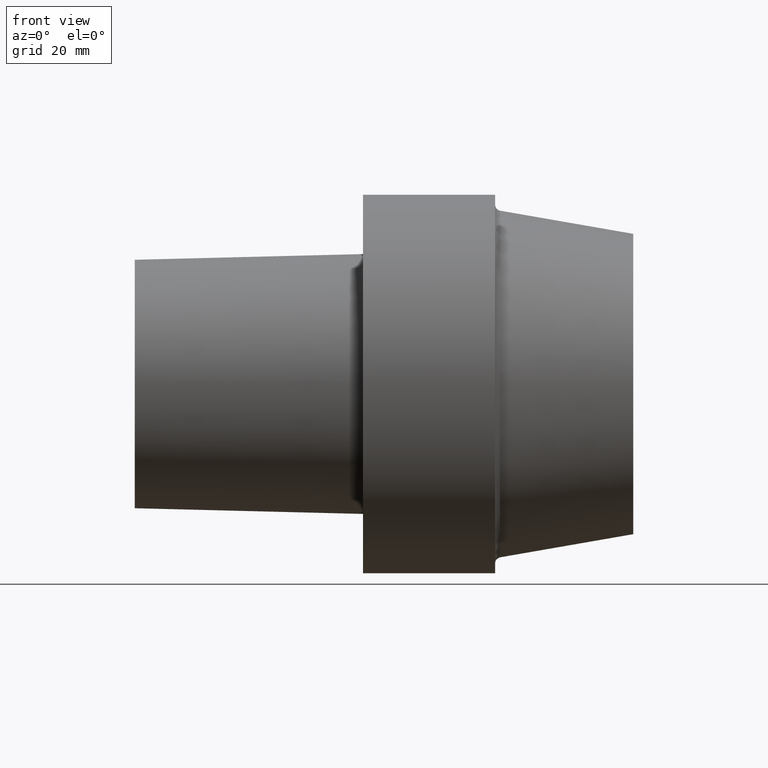
[diagram: clean part render]
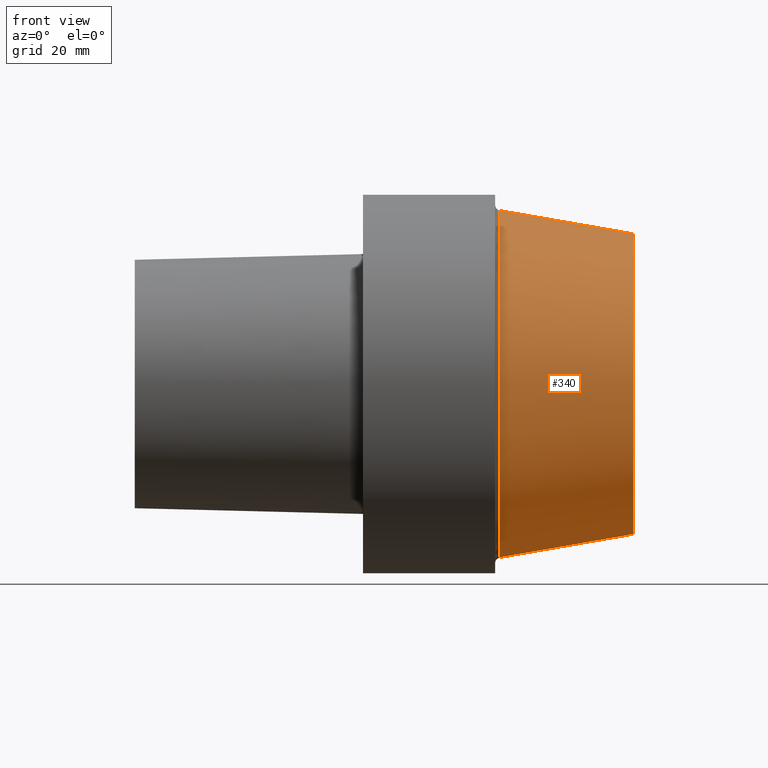
[diagram: same view with one face highlighted and labeled with its STEP entity id]
A machine part, front view. The second image highlights one B-rep face of the part: STEP entity #340.
In plain terms, the highlighted conical surface has half-angle 9.866 deg.
Its self-contained STEP definition (entity closure, byte-faithful):
#19 = DIRECTION ( 'NONE',  ( 0.000000000000000000, 0.000000000000000000, -1.000000000000000000 ) ) ;
#42 = VERTEX_POINT ( 'NONE', #320 ) ;
#64 = ORIENTED_EDGE ( 'NONE', *, *, #299, .T. ) ;
#71 = VERTEX_POINT ( 'NONE', #210 ) ;
#74 = CARTESIAN_POINT ( 'NONE',  ( 44.99999995409999798, 0.000000000000000000, 24.99999997449999967 ) ) ;
#77 = CARTESIAN_POINT ( 'NONE',  ( 44.99999995409999798, 0.000000000000000000, 0.000000000000000000 ) ) ;
#78 = EDGE_CURVE ( 'NONE', #144, #112, #378, .T. ) ;
#87 = CONICAL_SURFACE ( 'NONE', #140, 24.99999997449999967, 0.1721908144848698641 ) ;
#112 = VERTEX_POINT ( 'NONE', #128 ) ;
#128 = CARTESIAN_POINT ( 'NONE',  ( 44.99999995409999798, 3.297721881378803362E-15, -24.99999997449999967 ) ) ;
#140 = AXIS2_PLACEMENT_3D ( 'NONE', #77, #177, #232 ) ;
#144 = VERTEX_POINT ( 'NONE', #251 ) ;
#160 = ORIENTED_EDGE ( 'NONE', *, *, #78, .F. ) ;
#164 = ORIENTED_EDGE ( 'NONE', *, *, #349, .T. ) ;
#167 = AXIS2_PLACEMENT_3D ( 'NONE', #233, #348, #346 ) ;
#169 = FACE_OUTER_BOUND ( 'NONE', #274, .T. ) ;
#177 = DIRECTION ( 'NONE',  ( -1.000000000000000000, 0.000000000000000000, 0.000000000000000000 ) ) ;
#200 = CARTESIAN_POINT ( 'NONE',  ( 22.82865880671476688, 0.000000000000000000, 0.000000000000000000 ) ) ;
#210 = CARTESIAN_POINT ( 'NONE',  ( 22.82865880671476688, 3.533826768012075119E-15, -28.85588539056699631 ) ) ;
#219 = CARTESIAN_POINT ( 'NONE',  ( 44.99999995409999798, 3.061616994745535943E-15, -24.99999997449999967 ) ) ;
#220 = EDGE_CURVE ( 'NONE', #112, #71, #304, .T. ) ;
#232 = DIRECTION ( 'NONE',  ( 0.000000000000000000, 0.000000000000000000, 1.000000000000000000 ) ) ;
#233 = CARTESIAN_POINT ( 'NONE',  ( 44.99999995409999798, 0.000000000000000000, 0.000000000000000000 ) ) ;
#242 = AXIS2_PLACEMENT_3D ( 'NONE', #200, #351, #19 ) ;
#251 = CARTESIAN_POINT ( 'NONE',  ( 44.99999995409999798, 0.000000000000000000, 24.99999997449999967 ) ) ;
#255 = DIRECTION ( 'NONE',  ( -0.9852117548261971613, 0.000000000000000000, 0.1713411747137419949 ) ) ;
#260 = VECTOR ( 'NONE', #255, 1000.000000000000114 ) ;
#261 = ORIENTED_EDGE ( 'NONE', *, *, #220, .F. ) ;
#264 = LINE ( 'NONE', #74, #260 ) ;
#274 = EDGE_LOOP ( 'NONE', ( #261, #160, #64, #164 ) ) ;
#282 = VECTOR ( 'NONE', #306, 1000.000000000000114 ) ;
#299 = EDGE_CURVE ( 'NONE', #144, #42, #264, .T. ) ;
#304 = LINE ( 'NONE', #219, #282 ) ;
#306 = DIRECTION ( 'NONE',  ( -0.9852117548261971613, 2.098324211753310319E-17, -0.1713411747137419949 ) ) ;
#320 = CARTESIAN_POINT ( 'NONE',  ( 22.82865880671476688, 0.000000000000000000, 28.85588539056699631 ) ) ;
#340 = ADVANCED_FACE ( 'NONE', ( #169 ), #87, .T. ) ;
#346 = DIRECTION ( 'NONE',  ( 0.000000000000000000, 0.000000000000000000, -1.000000000000000000 ) ) ;
#348 = DIRECTION ( 'NONE',  ( 1.000000000000000000, 0.000000000000000000, 0.000000000000000000 ) ) ;
#349 = EDGE_CURVE ( 'NONE', #42, #71, #361, .T. ) ;
#351 = DIRECTION ( 'NONE',  ( 1.000000000000000000, 0.000000000000000000, 0.000000000000000000 ) ) ;
#361 = CIRCLE ( 'NONE', #242, 28.85588539056699631 ) ;
#378 = CIRCLE ( 'NONE', #167, 24.99999997449999967 ) ;